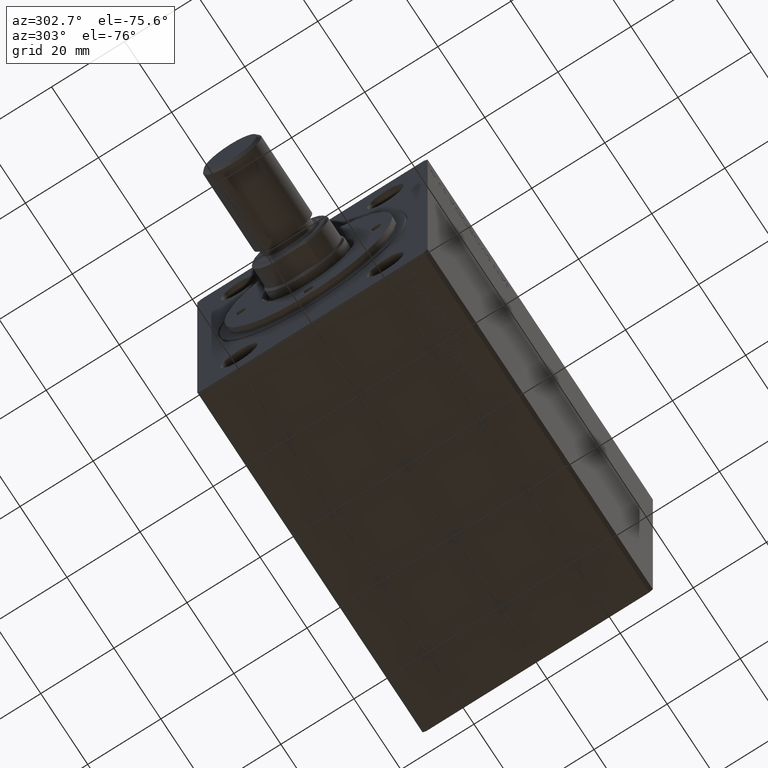
[diagram: clean part render]
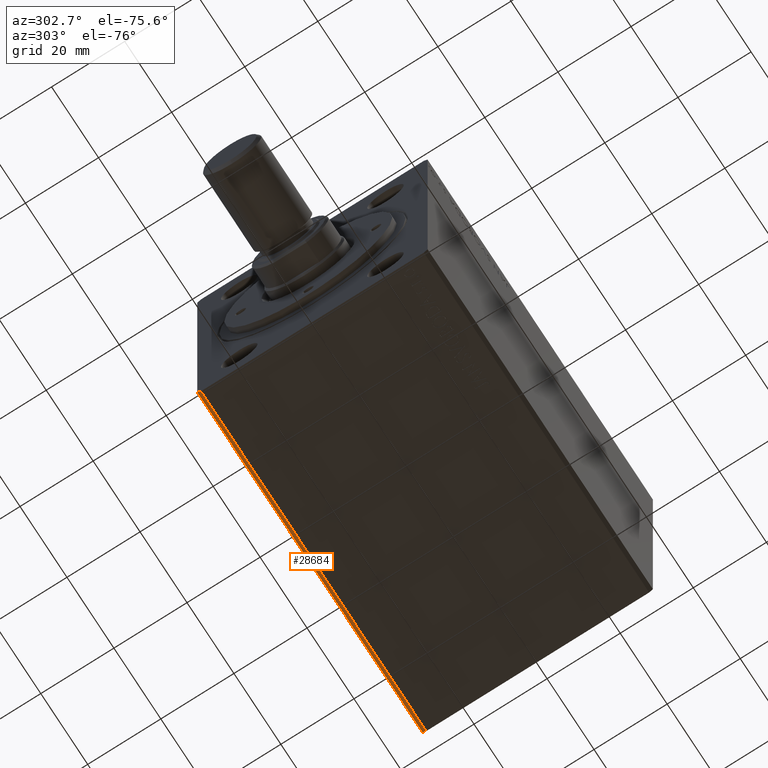
[diagram: same view with one face highlighted and labeled with its STEP entity id]
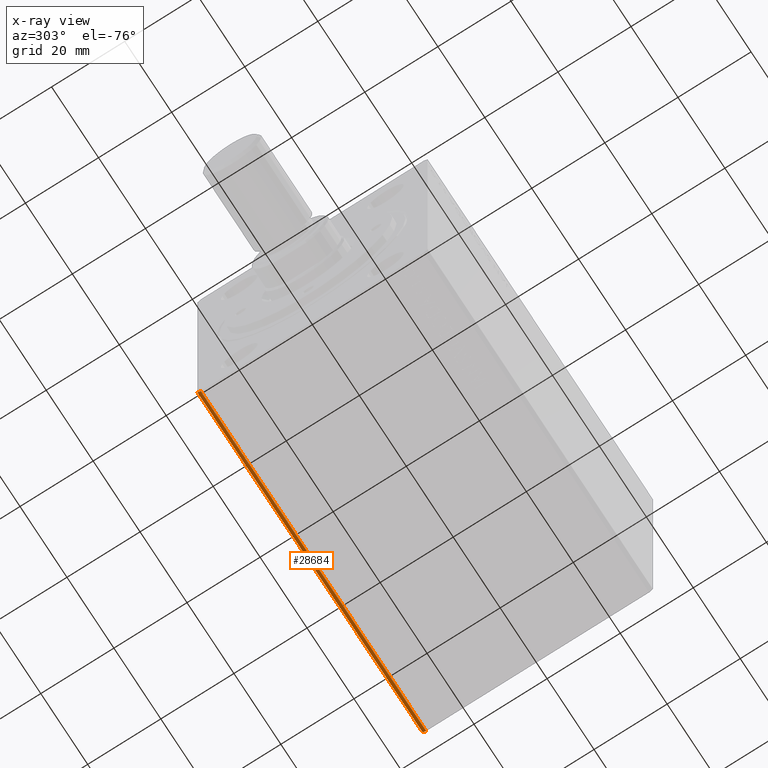
[diagram: x-ray of the same camera — body ghosted, the highlighted face saturated]
A machine part, auxiliary view. The second image highlights one B-rep face of the part: STEP entity #28684.
The next image is the same camera in x-ray: the body ghosted, the highlighted face saturated — about 0% of this face is hidden behind the body in this view.
In plain terms, the highlighted planar face has unit normal (0, -0.7071, 0.7071).
Its self-contained STEP definition (entity closure, byte-faithful):
#1438 = CARTESIAN_POINT ( 'NONE',  ( 96.00000000000000000, 30.50000000000001776, -42.50000000000000711 ) ) ;
#1451 = ORIENTED_EDGE ( 'NONE', *, *, #23142, .F. ) ;
#1702 = CARTESIAN_POINT ( 'NONE',  ( 0.000000000000000000, 30.50000000000001776, -42.50000000000000711 ) ) ;
#3057 = CARTESIAN_POINT ( 'NONE',  ( 96.00000000000000000, 30.50000000000001776, -42.50000000000000711 ) ) ;
#4379 = PLANE ( 'NONE',  #33676 ) ;
#7745 = DIRECTION ( 'NONE',  ( 0.000000000000000000, -0.7071067811865487940, 0.7071067811865462405 ) ) ;
#8640 = EDGE_CURVE ( 'NONE', #24971, #38415, #19457, .T. ) ;
#12884 = VECTOR ( 'NONE', #13394, 1000.000000000000000 ) ;
#13394 = DIRECTION ( 'NONE',  ( -1.000000000000000000, -0.000000000000000000, -0.000000000000000000 ) ) ;
#13720 = ORIENTED_EDGE ( 'NONE', *, *, #44085, .T. ) ;
#13867 = CARTESIAN_POINT ( 'NONE',  ( 96.00000000000000000, 30.50000000000001776, -42.50000000000000711 ) ) ;
#15190 = EDGE_CURVE ( 'NONE', #42569, #33590, #40007, .T. ) ;
#16802 = CARTESIAN_POINT ( 'NONE',  ( 96.00000000000000000, 31.50000000000001421, -41.50000000000000711 ) ) ;
#19457 = LINE ( 'NONE', #3057, #12884 ) ;
#21244 = FACE_OUTER_BOUND ( 'NONE', #27408, .T. ) ;
#23142 = EDGE_CURVE ( 'NONE', #24971, #42569, #34550, .T. ) ;
#24971 = VERTEX_POINT ( 'NONE', #1438 ) ;
#26501 = CARTESIAN_POINT ( 'NONE',  ( 0.000000000000000000, 31.50000000000001421, -41.50000000000000711 ) ) ;
#27408 = EDGE_LOOP ( 'NONE', ( #13720, #31459, #1451, #34613 ) ) ;
#28684 = ADVANCED_FACE ( 'NONE', ( #21244 ), #4379, .F. ) ;
#28860 = DIRECTION ( 'NONE',  ( 0.000000000000000000, -0.7071067811865462405, -0.7071067811865487940 ) ) ;
#28910 = DIRECTION ( 'NONE',  ( 0.000000000000000000, 0.7071067811865462405, 0.7071067811865489050 ) ) ;
#31459 = ORIENTED_EDGE ( 'NONE', *, *, #15190, .F. ) ;
#31593 = CARTESIAN_POINT ( 'NONE',  ( 96.00000000000000000, 30.50000000000001776, -42.50000000000000711 ) ) ;
#33590 = VERTEX_POINT ( 'NONE', #26501 ) ;
#33676 = AXIS2_PLACEMENT_3D ( 'NONE', #31593, #7745, #28860 ) ;
#33969 = CARTESIAN_POINT ( 'NONE',  ( 0.000000000000000000, 30.50000000000001776, -42.50000000000000711 ) ) ;
#34550 = LINE ( 'NONE', #13867, #38254 ) ;
#34613 = ORIENTED_EDGE ( 'NONE', *, *, #8640, .T. ) ;
#35765 = CARTESIAN_POINT ( 'NONE',  ( 96.00000000000000000, 31.50000000000001421, -41.50000000000000711 ) ) ;
#36257 = VECTOR ( 'NONE', #28910, 999.9999999999998863 ) ;
#36542 = LINE ( 'NONE', #1702, #36257 ) ;
#38254 = VECTOR ( 'NONE', #41284, 999.9999999999998863 ) ;
#38415 = VERTEX_POINT ( 'NONE', #33969 ) ;
#39788 = DIRECTION ( 'NONE',  ( -1.000000000000000000, -0.000000000000000000, -0.000000000000000000 ) ) ;
#40007 = LINE ( 'NONE', #35765, #43187 ) ;
#41284 = DIRECTION ( 'NONE',  ( 0.000000000000000000, 0.7071067811865462405, 0.7071067811865489050 ) ) ;
#42569 = VERTEX_POINT ( 'NONE', #16802 ) ;
#43187 = VECTOR ( 'NONE', #39788, 1000.000000000000000 ) ;
#44085 = EDGE_CURVE ( 'NONE', #38415, #33590, #36542, .T. ) ;